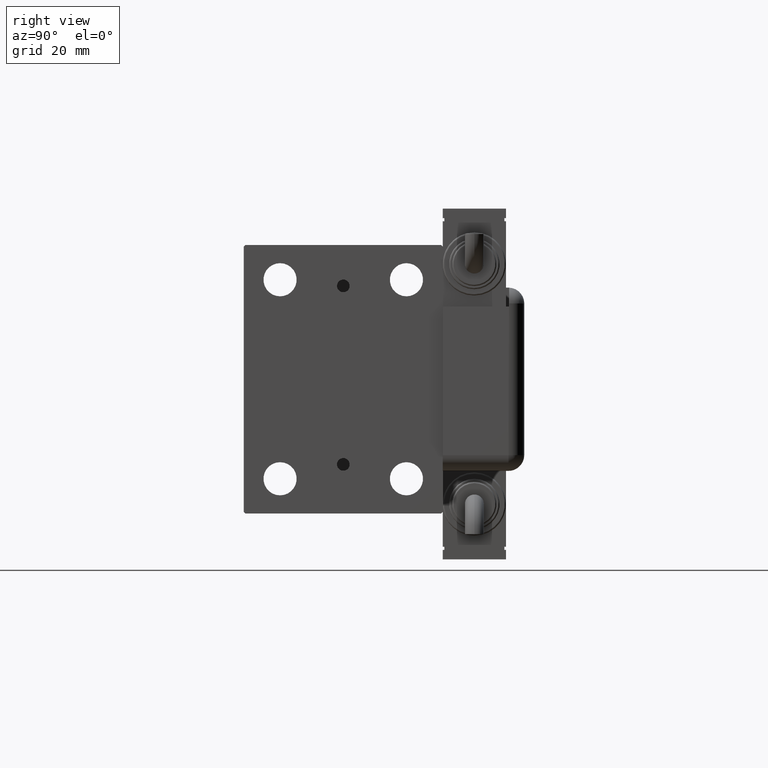
[diagram: clean part render]
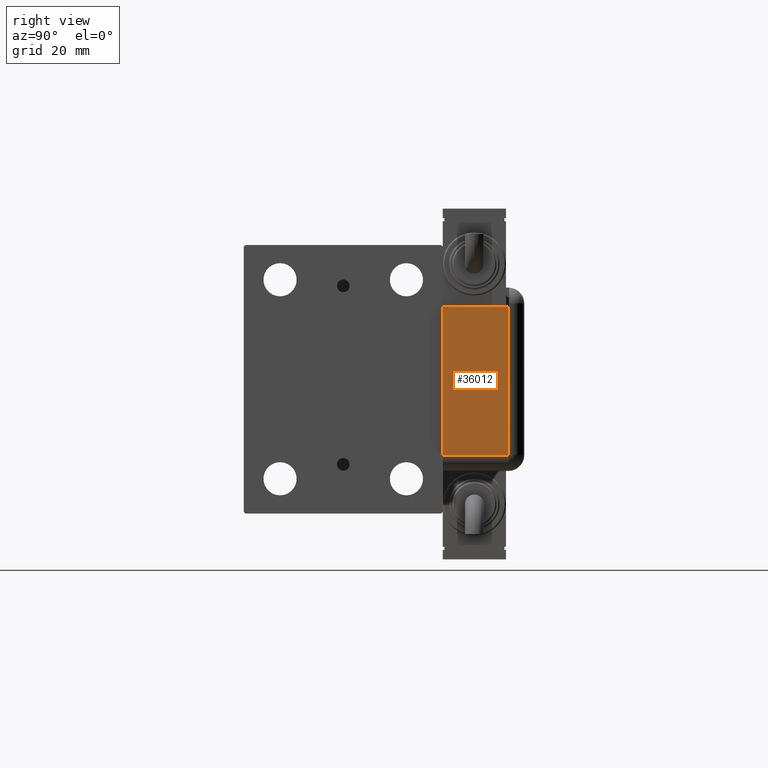
[diagram: same view with one face highlighted and labeled with its STEP entity id]
A machine part, right view. The second image highlights one B-rep face of the part: STEP entity #36012.
In plain terms, the highlighted planar face has unit normal (1, -0, -0).
Its self-contained STEP definition (entity closure, byte-faithful):
#1359 = CARTESIAN_POINT ( 'NONE',  ( 23.00000000000000000, 20.79999999999998295, 1.734723475976807094E-15 ) ) ;
#2476 = CARTESIAN_POINT ( 'NONE',  ( -23.99999999999999645, 20.79999999999998295, 0.000000000000000000 ) ) ;
#3707 = CARTESIAN_POINT ( 'NONE',  ( 28.99999999999999645, -9.421223957302265857E-15, 0.000000000000000000 ) ) ;
#4422 = CARTESIAN_POINT ( 'NONE',  ( 23.00000000000000000, 0.000000000000000000, 0.000000000000000000 ) ) ;
#4733 = CARTESIAN_POINT ( 'NONE',  ( 23.00000000000000000, 0.000000000000000000, 0.000000000000000000 ) ) ;
#6026 = DIRECTION ( 'NONE',  ( 0.000000000000000000, 0.000000000000000000, -1.000000000000000000 ) ) ;
#6158 = LINE ( 'NONE', #4733, #57187 ) ;
#7294 = ORIENTED_EDGE ( 'NONE', *, *, #34695, .F. ) ;
#7295 = LINE ( 'NONE', #7907, #45747 ) ;
#7792 = VECTOR ( 'NONE', #32177, 1000.000000000000000 ) ;
#7907 = CARTESIAN_POINT ( 'NONE',  ( -23.99999999999999645, 20.79999999999998295, 0.000000000000000000 ) ) ;
#15434 = DIRECTION ( 'NONE',  ( -1.000000000000000000, 0.000000000000000000, -0.000000000000000000 ) ) ;
#16893 = ORIENTED_EDGE ( 'NONE', *, *, #30165, .F. ) ;
#17160 = ORIENTED_EDGE ( 'NONE', *, *, #44961, .T. ) ;
#18241 = LINE ( 'NONE', #3707, #7792 ) ;
#19669 = FACE_OUTER_BOUND ( 'NONE', #29425, .T. ) ;
#19722 = VERTEX_POINT ( 'NONE', #34664 ) ;
#29425 = EDGE_LOOP ( 'NONE', ( #17160, #7294, #16893, #37170 ) ) ;
#30165 = EDGE_CURVE ( 'NONE', #19722, #33467, #18241, .T. ) ;
#32177 = DIRECTION ( 'NONE',  ( 1.000000000000000000, -2.079047426506382950E-15, -0.000000000000000000 ) ) ;
#33467 = VERTEX_POINT ( 'NONE', #4422 ) ;
#34664 = CARTESIAN_POINT ( 'NONE',  ( -23.99999999999999289, 1.007682896475360021E-13, 0.000000000000000000 ) ) ;
#34695 = EDGE_CURVE ( 'NONE', #33467, #41356, #6158, .T. ) ;
#34898 = DIRECTION ( 'NONE',  ( -0.000000000000000000, 1.000000000000000000, -0.000000000000000000 ) ) ;
#36012 = ADVANCED_FACE ( 'NONE', ( #19669 ), #38174, .T. ) ;
#36991 = DIRECTION ( 'NONE',  ( 1.000000000000000000, -0.000000000000000000, -0.000000000000000000 ) ) ;
#37170 = ORIENTED_EDGE ( 'NONE', *, *, #38542, .T. ) ;
#38174 = PLANE ( 'NONE',  #39813 ) ;
#38542 = EDGE_CURVE ( 'NONE', #19722, #41940, #7295, .T. ) ;
#39813 = AXIS2_PLACEMENT_3D ( 'NONE', #56978, #6026, #15434 ) ;
#41356 = VERTEX_POINT ( 'NONE', #1359 ) ;
#41940 = VERTEX_POINT ( 'NONE', #2476 ) ;
#43151 = DIRECTION ( 'NONE',  ( 0.000000000000000000, 1.000000000000000000, 0.000000000000000000 ) ) ;
#44961 = EDGE_CURVE ( 'NONE', #41940, #41356, #46371, .T. ) ;
#45747 = VECTOR ( 'NONE', #34898, 1000.000000000000000 ) ;
#46371 = LINE ( 'NONE', #46685, #49870 ) ;
#46685 = CARTESIAN_POINT ( 'NONE',  ( 23.99999999999999289, 20.79999999999998295, 0.000000000000000000 ) ) ;
#49870 = VECTOR ( 'NONE', #36991, 1000.000000000000000 ) ;
#56978 = CARTESIAN_POINT ( 'NONE',  ( 0.000000000000000000, 0.000000000000000000, 0.000000000000000000 ) ) ;
#57187 = VECTOR ( 'NONE', #43151, 1000.000000000000000 ) ;